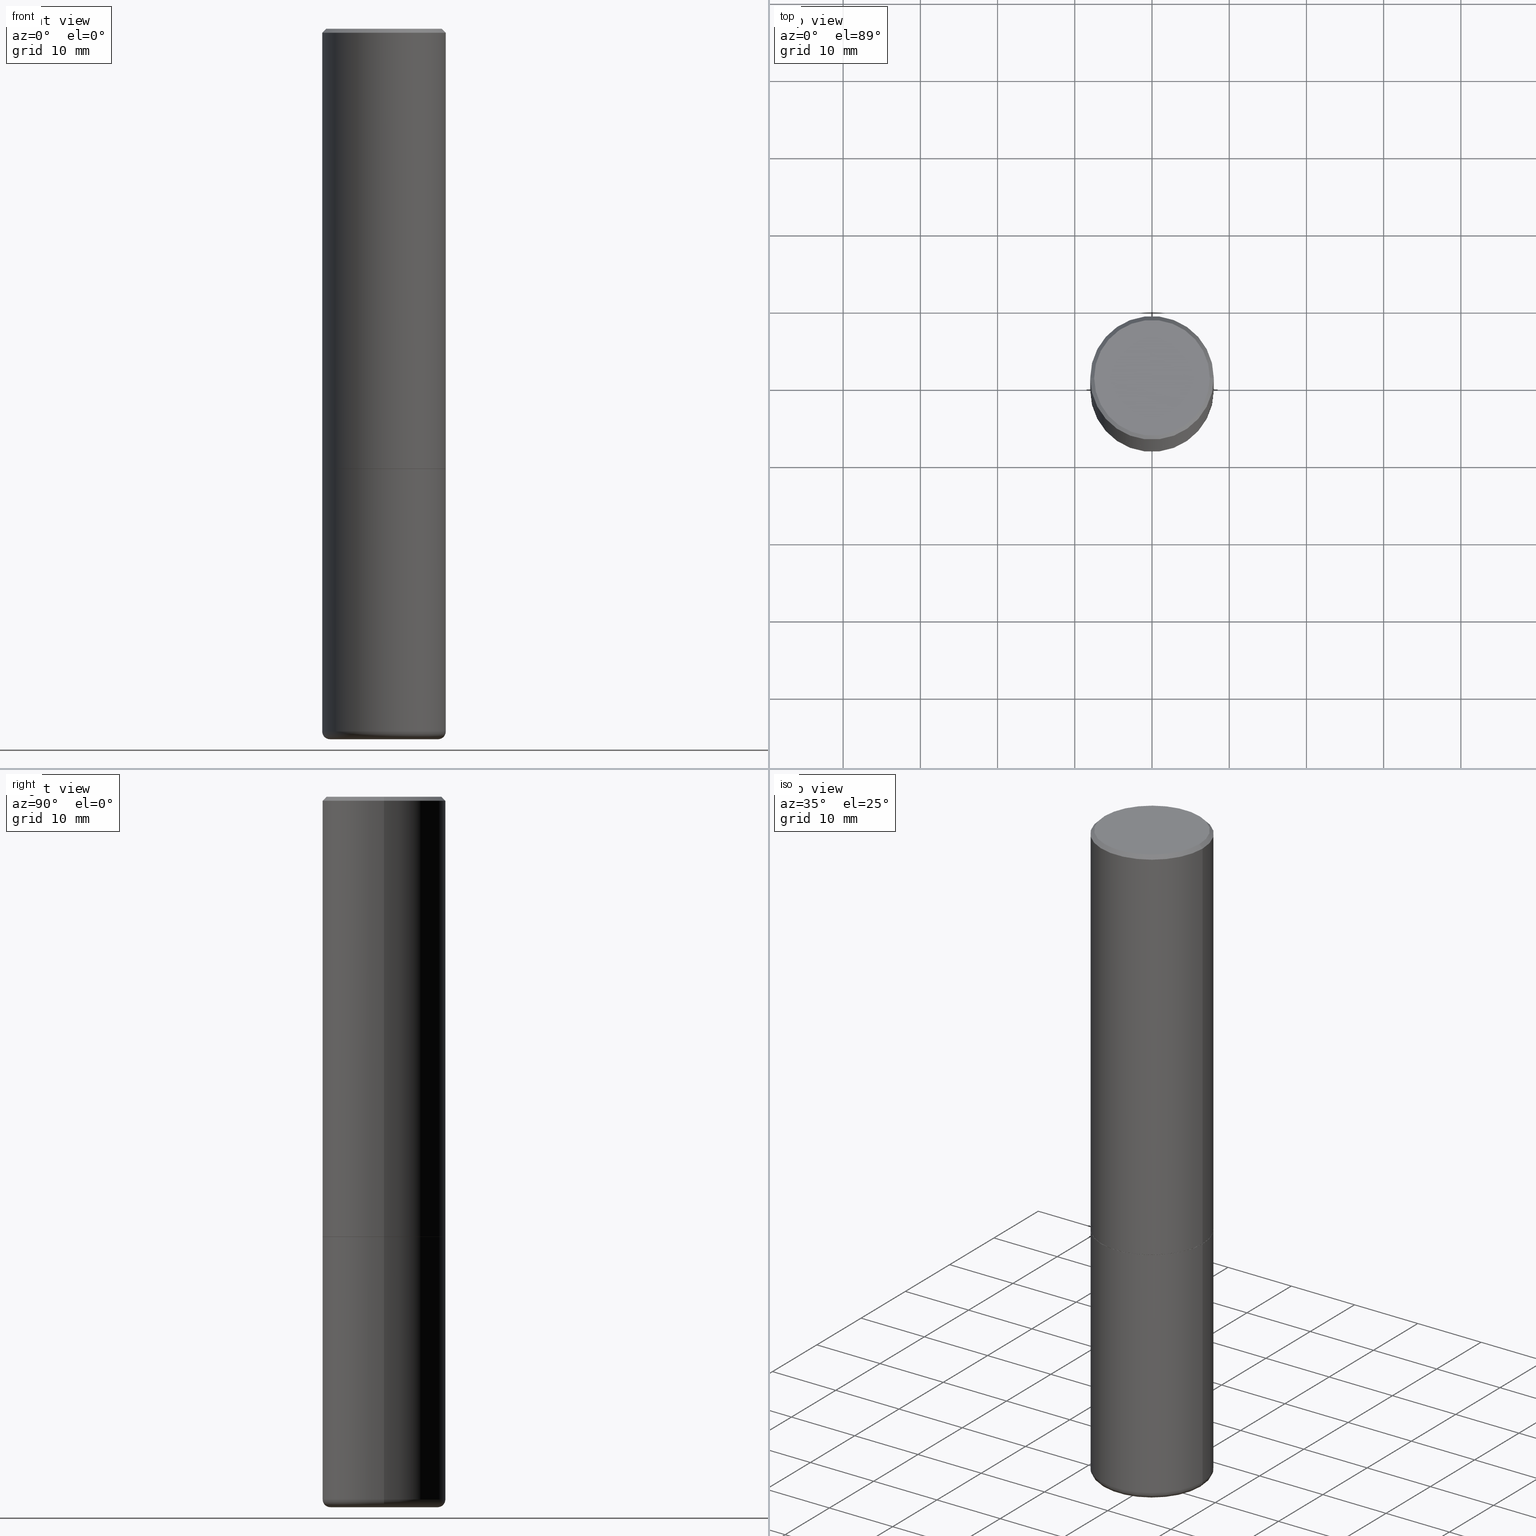
[diagram: canonical four-view strip — front | top / right | iso, engineering-drawing reading convention]
A machine part, canonical four-view strip (front | top / right | iso — engineering-drawing reading convention). The complete STEP part file that produces these views, byte-faithful:
ISO-10303-21;
HEADER;
FILE_DESCRIPTION (( 'STEP AP203' ),
    '1' );
FILE_NAME ('48035.STEP',
    '2024-03-06T19:47:27',
    ( '' ),
    ( '' ),
    'SwSTEP 2.0',
    'SolidWorks 2023',
    '' );
FILE_SCHEMA (( 'CONFIG_CONTROL_DESIGN' ));
ENDSEC;

DATA;
#1 = ORGANIZATION ( 'UNSPECIFIED', 'UNSPECIFIED', '' ) ;
#2 = PERSON_AND_ORGANIZATION_ROLE ( 'classification_officer' ) ;
#3 = APPROVAL_DATE_TIME ( #81, #416 ) ;
#4 = CALENDAR_DATE ( 2024, 6, 3 ) ;
#5 = AXIS2_PLACEMENT_3D ( 'NONE', #119, #242, #365 ) ;
#6 = VERTEX_POINT ( 'NONE', #215 ) ;
#7 = VECTOR ( 'NONE', #301, 39.37007874015748143 ) ;
#8 = DIRECTION ( 'NONE',  ( -1.000000000000000000, 7.105427357601001859E-15, 0.000000000000000000 ) ) ;
#9 = ORIENTED_EDGE ( 'NONE', *, *, #149, .F. ) ;
#10 = DIRECTION ( 'NONE',  ( -2.445468806185136597E-29, 3.491481338843145583E-15, 1.000000000000000000 ) ) ;
#11 = EDGE_CURVE ( 'NONE', #201, #326, #370, .T. ) ;
#12 = ORIENTED_EDGE ( 'NONE', *, *, #203, .F. ) ;
#13 = ORIENTED_EDGE ( 'NONE', *, *, #220, .T. ) ;
#14 = AXIS2_PLACEMENT_3D ( 'NONE', #88, #246, #8 ) ;
#15 = CARTESIAN_POINT ( 'NONE',  ( -0.3139500000000000068, -5.598836751096959871E-15, -2.243999999999999773 ) ) ;
#16 = CARTESIAN_POINT ( 'NONE',  ( 5.487632001079445967E-29, -7.834884124364017250E-15, -2.243999999999999773 ) ) ;
#17 = LINE ( 'NONE', #95, #322 ) ;
#18 = DIRECTION ( 'NONE',  ( 1.000000000000000000, -6.982962677686267499E-15, 4.874125435057325556E-29 ) ) ;
#19 = CYLINDRICAL_SURFACE ( 'NONE', #69, 0.3149500000000000077 ) ;
#20 = CC_DESIGN_DATE_AND_TIME_ASSIGNMENT ( #372, #376, ( #332 ) ) ;
#21 = FACE_OUTER_BOUND ( 'NONE', #219, .T. ) ;
#22 = ORIENTED_EDGE ( 'NONE', *, *, #170, .T. ) ;
#23 = CIRCLE ( 'NONE', #329, 0.3149500000000000077 ) ;
#24 = PLANE ( 'NONE',  #202 ) ;
#25 = VERTEX_POINT ( 'NONE', #258 ) ;
#26 = CARTESIAN_POINT ( 'NONE',  ( 0.3149500000000001743, -1.470786513987674265E-14, -3.582599999999999785 ) ) ;
#27 = DIRECTION ( 'NONE',  ( -2.445468806185136597E-29, 3.491481338843145583E-15, 1.000000000000000000 ) ) ;
#28 = ADVANCED_FACE ( 'NONE', ( #383 ), #19, .T. ) ;
#29 = ORIENTED_EDGE ( 'NONE', *, *, #203, .T. ) ;
#30 = ORIENTED_EDGE ( 'NONE', *, *, #78, .T. ) ;
#31 =( GEOMETRIC_REPRESENTATION_CONTEXT ( 3 ) GLOBAL_UNCERTAINTY_ASSIGNED_CONTEXT ( ( #230 ) ) GLOBAL_UNIT_ASSIGNED_CONTEXT ( ( #91, #305, #253 ) ) REPRESENTATION_CONTEXT ( 'NONE', 'WORKASPACE' ) );
#32 = AXIS2_PLACEMENT_3D ( 'NONE', #129, #165, #194 ) ;
#33 = CARTESIAN_POINT ( 'NONE',  ( -0.3149500000000000077, 2.129454468560426573E-15, -0.02000000000000006981 ) ) ;
#34 = DIRECTION ( 'NONE',  ( -2.445468806185136597E-29, 3.491481338843145583E-15, 1.000000000000000000 ) ) ;
#35 = CIRCLE ( 'NONE', #262, 0.2755500000000000171 ) ;
#36 = PERSON_AND_ORGANIZATION ( #309, #1 ) ;
#37 = EDGE_CURVE ( 'NONE', #381, #358, #245, .T. ) ;
#38 = DATE_TIME_ROLE ( 'classification_date' ) ;
#39 = ORIENTED_EDGE ( 'NONE', *, *, #264, .T. ) ;
#40 = EDGE_CURVE ( 'NONE', #326, #351, #125, .T. ) ;
#41 = MANIFOLD_SOLID_BREP ( 'Body-Move/Copy2[2]', #318 ) ;
#42 = VECTOR ( 'NONE', #216, 39.37007874015748143 ) ;
#43 = DATE_AND_TIME ( #226, #218 ) ;
#44 = ORIENTED_EDGE ( 'NONE', *, *, #11, .F. ) ;
#45 = CC_DESIGN_PERSON_AND_ORGANIZATION_ASSIGNMENT ( #107, #323, ( #114 ) ) ;
#46 = LINE ( 'NONE', #83, #139 ) ;
#47 = EDGE_LOOP ( 'NONE', ( #235, #134, #362, #395 ) ) ;
#48 = VERTEX_POINT ( 'NONE', #64 ) ;
#49 = ADVANCED_FACE ( 'NONE', ( #273 ), #93, .T. ) ;
#50 = FACE_OUTER_BOUND ( 'NONE', #154, .T. ) ;
#51 = PLANE ( 'NONE',  #142 ) ;
#52 = AXIS2_PLACEMENT_3D ( 'NONE', #272, #163, #18 ) ;
#53 = CARTESIAN_POINT ( 'NONE',  ( 8.857488016002564476E-29, -1.264614540928987199E-14, -3.621999999999999886 ) ) ;
#54 = ORIENTED_EDGE ( 'NONE', *, *, #325, .F. ) ;
#55 = EDGE_CURVE ( 'NONE', #269, #25, #23, .T. ) ;
#56 = DIRECTION ( 'NONE',  ( 1.000000000000000000, -6.982962677686264344E-15, 0.000000000000000000 ) ) ;
#57 = VERTEX_POINT ( 'NONE', #185 ) ;
#58 = CARTESIAN_POINT ( 'NONE',  ( 0.2755500000000000171, -1.457030077512632343E-14, -3.621999999999999886 ) ) ;
#59 = CARTESIAN_POINT ( 'NONE',  ( 0.2949499999999997679, -2.127023677808859286E-15, 2.219626494852360421E-16 ) ) ;
#60 = ORIENTED_EDGE ( 'NONE', *, *, #408, .T. ) ;
#61 = AXIS2_PLACEMENT_3D ( 'NONE', #360, #233, #80 ) ;
#62 = CALENDAR_DATE ( 2024, 6, 3 ) ;
#63 = CARTESIAN_POINT ( 'NONE',  ( 5.487632001079445967E-29, -7.834884124364017250E-15, -2.243999999999999773 ) ) ;
#64 = CARTESIAN_POINT ( 'NONE',  ( -0.2949499999999997679, 2.094539655171995318E-15, 2.219626494852068542E-16 ) ) ;
#65 = PERSON_AND_ORGANIZATION ( #309, #1 ) ;
#66 = ORIENTED_EDGE ( 'NONE', *, *, #128, .T. ) ;
#67 = AXIS2_PLACEMENT_3D ( 'NONE', #96, #375, #341 ) ;
#68 = AXIS2_PLACEMENT_3D ( 'NONE', #183, #308, #160 ) ;
#69 = AXIS2_PLACEMENT_3D ( 'NONE', #304, #249, #121 ) ;
#70 = PERSON_AND_ORGANIZATION ( #309, #1 ) ;
#71 = ADVANCED_FACE ( 'NONE', ( #310 ), #415, .F. ) ;
#72 = CIRCLE ( 'NONE', #5, 0.3149500000000000632 ) ;
#73 = EDGE_CURVE ( 'NONE', #6, #351, #259, .T. ) ;
#74 = COORDINATED_UNIVERSAL_TIME_OFFSET ( 5, 0, .BEHIND. ) ;
#75 = VERTEX_POINT ( 'NONE', #367 ) ;
#76 = APPROVAL_DATE_TIME ( #198, #298 ) ;
#77 = EDGE_LOOP ( 'NONE', ( #144, #211 ) ) ;
#78 = EDGE_CURVE ( 'NONE', #358, #410, #363, .T. ) ;
#79 = DIRECTION ( 'NONE',  ( 2.445468806185136597E-29, -3.491481338843145583E-15, -1.000000000000000000 ) ) ;
#80 = DIRECTION ( 'NONE',  ( 1.000000000000000000, -6.982962677686264344E-15, 0.000000000000000000 ) ) ;
#81 = DATE_AND_TIME ( #200, #238 ) ;
#82 = ORIENTED_EDGE ( 'NONE', *, *, #264, .F. ) ;
#83 = CARTESIAN_POINT ( 'NONE',  ( -0.3149500000000000077, 2.237854346276435590E-15, -1.549218606675782676E-29 ) ) ;
#84 = CARTESIAN_POINT ( 'NONE',  ( 0.3139500000000000068, -1.002718525702362111E-14, -2.243999999999999773 ) ) ;
#85 = DIRECTION ( 'NONE',  ( -2.445468806185136597E-29, 3.491481338843145583E-15, 1.000000000000000000 ) ) ;
#86 = ORIENTED_EDGE ( 'NONE', *, *, #97, .T. ) ;
#87 = DIRECTION ( 'NONE',  ( 1.000000000000000000, -6.982962677686264344E-15, 0.000000000000000000 ) ) ;
#88 = CARTESIAN_POINT ( 'NONE',  ( -0.2755500000000000171, -1.055068053615249541E-14, -3.582599999999999785 ) ) ;
#89 = DIRECTION ( 'NONE',  ( -2.445468806185136597E-29, 3.491481338843145583E-15, 1.000000000000000000 ) ) ;
#90 = ORIENTED_EDGE ( 'NONE', *, *, #366, .T. ) ;
#91 =( CONVERSION_BASED_UNIT ( 'INCH', #182 ) LENGTH_UNIT ( ) NAMED_UNIT ( #260 ) );
#92 = LINE ( 'NONE', #247, #317 ) ;
#93 = CYLINDRICAL_SURFACE ( 'NONE', #67, 0.3149500000000001743 ) ;
#94 = DIRECTION ( 'NONE',  ( 1.000000000000000000, -6.982962677686264344E-15, 0.000000000000000000 ) ) ;
#95 = CARTESIAN_POINT ( 'NONE',  ( 0.3149500000000001743, -2.199284095337290660E-15, 1.535751875536930690E-29 ) ) ;
#96 = CARTESIAN_POINT ( 'NONE',  ( 0.000000000000000000, 0.000000000000000000, 0.000000000000000000 ) ) ;
#97 = EDGE_CURVE ( 'NONE', #313, #57, #406, .T. ) ;
#98 = DIRECTION ( 'NONE',  ( 1.000000000000000000, -6.982962677686267499E-15, 0.000000000000000000 ) ) ;
#99 = EDGE_LOOP ( 'NONE', ( #54, #229 ) ) ;
#100 = APPROVAL_PERSON_ORGANIZATION ( #36, #416, #109 ) ;
#101 =( LENGTH_UNIT ( ) NAMED_UNIT ( * ) SI_UNIT ( $, .METRE. ) );
#102 = CARTESIAN_POINT ( 'NONE',  ( 0.3149500000000000077, -2.230543471175007450E-15, -0.02000000000000006981 ) ) ;
#103 = CARTESIAN_POINT ( 'NONE',  ( 2.059624841783562486E-15, 0.2949499999999997679, -9.188310961491742905E-16 ) ) ;
#104 = CC_DESIGN_PERSON_AND_ORGANIZATION_ASSIGNMENT ( #106, #353, ( #332 ) ) ;
#105 = CONICAL_SURFACE ( 'NONE', #146, 0.3139500000000000068, 0.7853981633975507526 ) ;
#106 = PERSON_AND_ORGANIZATION ( #309, #1 ) ;
#107 = PERSON_AND_ORGANIZATION ( #309, #1 ) ;
#108 = EDGE_CURVE ( 'NONE', #201, #48, #177, .T. ) ;
#109 = APPROVAL_ROLE ( '' ) ;
#110 = AXIS2_PLACEMENT_3D ( 'NONE', #173, #368, #150 ) ;
#111 = AXIS2_PLACEMENT_3D ( 'NONE', #348, #89, #270 ) ;
#112 = ORIENTED_EDGE ( 'NONE', *, *, #220, .F. ) ;
#113 = ORIENTED_EDGE ( 'NONE', *, *, #55, .T. ) ;
#114 = PRODUCT_DEFINITION_FORMATION_WITH_SPECIFIED_SOURCE ( 'ANY', '', #354, .NOT_KNOWN. ) ;
#115 = ORIENTED_EDGE ( 'NONE', *, *, #37, .T. ) ;
#116 = DIRECTION ( 'NONE',  ( 1.000000000000000000, -6.982962677686266711E-15, 4.883557194083112901E-29 ) ) ;
#117 = APPROVAL ( #417, 'UNSPECIFIED' ) ;
#118 = PRODUCT_RELATED_PRODUCT_CATEGORY ( 'detail', '', ( #354 ) ) ;
#119 = CARTESIAN_POINT ( 'NONE',  ( 8.761136545038868759E-29, -1.250858104453945120E-14, -3.582599999999999785 ) ) ;
#120 = DIRECTION ( 'NONE',  ( -2.445468806185136597E-29, 3.491481338843145583E-15, 1.000000000000000000 ) ) ;
#121 = DIRECTION ( 'NONE',  ( 1.000000000000000000, -6.982962677686266711E-15, 4.876176775795936353E-29 ) ) ;
#122 = APPROVAL_DATE_TIME ( #274, #117 ) ;
#123 = DIRECTION ( 'NONE',  ( 1.000000000000000000, -6.982962677686266711E-15, 4.883557194083112901E-29 ) ) ;
#124 = ORIENTED_EDGE ( 'NONE', *, *, #37, .F. ) ;
#125 = CIRCLE ( 'NONE', #374, 0.3149500000000000077 ) ;
#126 = DIRECTION ( 'NONE',  ( -2.445468806185136597E-29, 3.491481338843145583E-15, 1.000000000000000000 ) ) ;
#127 = DIRECTION ( 'NONE',  ( 1.000000000000000000, -6.982962677686266711E-15, 4.876176775795936353E-29 ) ) ;
#128 = EDGE_CURVE ( 'NONE', #6, #57, #414, .T. ) ;
#129 = CARTESIAN_POINT ( 'NONE',  ( 0.2755500000000000171, -1.443273641037590422E-14, -3.582599999999999785 ) ) ;
#130 = CARTESIAN_POINT ( 'NONE',  ( 0.000000000000000000, 0.000000000000000000, 0.000000000000000000 ) ) ;
#131 = FACE_OUTER_BOUND ( 'NONE', #338, .T. ) ;
#132 = EDGE_LOOP ( 'NONE', ( #407, #39, #296, #241 ) ) ;
#133 = DIRECTION ( 'NONE',  ( -1.000000000000000000, 6.982962677686266711E-15, 0.000000000000000000 ) ) ;
#134 = ORIENTED_EDGE ( 'NONE', *, *, #342, .T. ) ;
#135 = CIRCLE ( 'NONE', #227, 0.3139500000000000068 ) ;
#136 = DIRECTION ( 'NONE',  ( -1.000000000000000000, 6.982962677686265922E-15, -4.876176775795935793E-29 ) ) ;
#137 = EDGE_CURVE ( 'NONE', #75, #381, #167, .T. ) ;
#138 = DIRECTION ( 'NONE',  ( 2.445468806185136597E-29, -3.491481338843145583E-15, -1.000000000000000000 ) ) ;
#139 = VECTOR ( 'NONE', #145, 39.37007874015748143 ) ;
#140 = ADVANCED_FACE ( 'NONE', ( #251 ), #267, .T. ) ;
#141 = APPROVAL_STATUS ( 'not_yet_approved' ) ;
#142 = AXIS2_PLACEMENT_3D ( 'NONE', #63, #295, #210 ) ;
#143 = ORIENTED_EDGE ( 'NONE', *, *, #384, .F. ) ;
#144 = ORIENTED_EDGE ( 'NONE', *, *, #384, .T. ) ;
#145 = DIRECTION ( 'NONE',  ( -2.445468806185136877E-29, 3.491481338843145188E-15, 1.000000000000000000 ) ) ;
#146 = AXIS2_PLACEMENT_3D ( 'NONE', #377, #369, #56 ) ;
#147 = ORIENTED_EDGE ( 'NONE', *, *, #73, .F. ) ;
#148 = ADVANCED_FACE ( 'NONE', ( #174 ), #248, .T. ) ;
#149 = EDGE_CURVE ( 'NONE', #358, #25, #92, .T. ) ;
#150 = DIRECTION ( 'NONE',  ( 1.000000000000000000, -6.982962677686265922E-15, 4.876176775795935232E-29 ) ) ;
#151 = FACE_OUTER_BOUND ( 'NONE', #209, .T. ) ;
#152 = ORIENTED_EDGE ( 'NONE', *, *, #73, .T. ) ;
#153 = CARTESIAN_POINT ( 'NONE',  ( 5.487632001079445967E-29, -7.834884124364017250E-15, -2.243999999999999773 ) ) ;
#154 = EDGE_LOOP ( 'NONE', ( #147, #66, #164, #12 ) ) ;
#155 = DIRECTION ( 'NONE',  ( -2.445468806185136597E-29, 3.491481338843145583E-15, 1.000000000000000000 ) ) ;
#156 = ORIENTED_EDGE ( 'NONE', *, *, #40, .T. ) ;
#157 = CIRCLE ( 'NONE', #334, 0.2949499999999997679 ) ;
#158 = VECTOR ( 'NONE', #373, 39.37007874015748143 ) ;
#159 = CARTESIAN_POINT ( 'NONE',  ( 5.487632001079445967E-29, -7.834884124364017250E-15, -2.243999999999999773 ) ) ;
#160 = DIRECTION ( 'NONE',  ( 1.000000000000000000, -6.982962677686266711E-15, 0.000000000000000000 ) ) ;
#161 = ORIENTED_EDGE ( 'NONE', *, *, #11, .T. ) ;
#162 = CARTESIAN_POINT ( 'NONE',  ( -5.428027354543142984E-45, 7.749784485978325769E-31, 2.219626494852213988E-16 ) ) ;
#163 = DIRECTION ( 'NONE',  ( -2.445468806185136597E-29, 3.491481338843145583E-15, 1.000000000000000000 ) ) ;
#164 = ORIENTED_EDGE ( 'NONE', *, *, #191, .T. ) ;
#165 = DIRECTION ( 'NONE',  ( -6.982962677686266711E-15, -1.000000000000000000, 3.491481338843145583E-15 ) ) ;
#166 = CONICAL_SURFACE ( 'NONE', #347, 0.3149500000000000077, 0.7853981633974468357 ) ;
#167 = CIRCLE ( 'NONE', #390, 0.2755500000000000171 ) ;
#168 = CC_DESIGN_APPROVAL ( #298, ( #114 ) ) ;
#169 = CC_DESIGN_APPROVAL ( #416, ( #393 ) ) ;
#170 = EDGE_CURVE ( 'NONE', #25, #269, #371, .T. ) ;
#171 = CIRCLE ( 'NONE', #284, 0.3139500000000000068 ) ;
#172 = ADVANCED_FACE ( 'NONE', ( #21 ), #51, .F. ) ;
#173 = CARTESIAN_POINT ( 'NONE',  ( 0.000000000000000000, 0.000000000000000000, 0.000000000000000000 ) ) ;
#174 = FACE_OUTER_BOUND ( 'NONE', #330, .T. ) ;
#175 = CIRCLE ( 'NONE', #288, 0.3149500000000002853 ) ;
#176 = EDGE_LOOP ( 'NONE', ( #277, #152, #279, #349 ) ) ;
#177 = CIRCLE ( 'NONE', #52, 0.2949499999999997679 ) ;
#178 = CARTESIAN_POINT ( 'NONE',  ( 8.761136545038868759E-29, -1.250858104453945120E-14, -3.582599999999999785 ) ) ;
#179 = ORIENTED_EDGE ( 'NONE', *, *, #306, .T. ) ;
#180 = CYLINDRICAL_SURFACE ( 'NONE', #276, 0.3149500000000000077 ) ;
#181 = ORIENTED_EDGE ( 'NONE', *, *, #137, .F. ) ;
#182 = LENGTH_MEASURE_WITH_UNIT ( LENGTH_MEASURE( 0.02539999999999999897 ), #101 );
#183 = CARTESIAN_POINT ( 'NONE',  ( 4.890937612370289799E-31, -6.982962677686315028E-17, -0.02000000000000006981 ) ) ;
#184 = LOCAL_TIME ( 14, 47, 27.00000000000000000, #74 ) ;
#185 = CARTESIAN_POINT ( 'NONE',  ( 0.3149500000000002853, -1.003067673836246727E-14, -2.242999999999999883 ) ) ;
#186 = APPROVAL_PERSON_ORGANIZATION ( #70, #298, #343 ) ;
#187 = CALENDAR_DATE ( 2024, 6, 3 ) ;
#188 = CARTESIAN_POINT ( 'NONE',  ( 8.857488016002564476E-29, -1.264614540928987199E-14, -3.621999999999999886 ) ) ;
#189 = MANIFOLD_SOLID_BREP ( 'Body-Move/Copy2[1]', #352 ) ;
#190 = DIRECTION ( 'NONE',  ( 1.000000000000000000, -6.982962677686266711E-15, 0.000000000000000000 ) ) ;
#191 = EDGE_CURVE ( 'NONE', #57, #326, #17, .T. ) ;
#192 = APPLICATION_PROTOCOL_DEFINITION ( 'international standard', 'config_control_design', 1994, #297 ) ;
#193 = ADVANCED_FACE ( 'NONE', ( #214 ), #105, .T. ) ;
#194 = DIRECTION ( 'NONE',  ( 1.000000000000000000, -6.982962677686255667E-15, 0.000000000000000000 ) ) ;
#195 = ADVANCED_FACE ( 'NONE', ( #151 ), #24, .T. ) ;
#196 = COORDINATED_UNIVERSAL_TIME_OFFSET ( 5, 0, .BEHIND. ) ;
#197 = AXIS2_PLACEMENT_3D ( 'NONE', #16, #239, #205 ) ;
#198 = DATE_AND_TIME ( #4, #184 ) ;
#199 = ADVANCED_FACE ( 'NONE', ( #131 ), #180, .T. ) ;
#200 = CALENDAR_DATE ( 2024, 6, 3 ) ;
#201 = VERTEX_POINT ( 'NONE', #59 ) ;
#202 = AXIS2_PLACEMENT_3D ( 'NONE', #312, #207, #344 ) ;
#203 = EDGE_CURVE ( 'NONE', #351, #326, #382, .T. ) ;
#204 = CARTESIAN_POINT ( 'NONE',  ( -0.3139500000000000068, -5.604135205445183851E-15, -2.243999999999999773 ) ) ;
#205 = DIRECTION ( 'NONE',  ( 1.000000000000000000, -6.982962677686265922E-15, 4.876176775795935793E-29 ) ) ;
#206 = CARTESIAN_POINT ( 'NONE',  ( 0.3149500000000000077, -2.230543471175007450E-15, -0.02000000000000006981 ) ) ;
#207 = DIRECTION ( 'NONE',  ( 2.438088387897960049E-29, -3.491481338843145188E-15, -1.000000000000000000 ) ) ;
#208 = VECTOR ( 'NONE', #320, 39.37007874015748143 ) ;
#209 = EDGE_LOOP ( 'NONE', ( #112, #181 ) ) ;
#210 = DIRECTION ( 'NONE',  ( -1.000000000000000000, 6.982962677686265922E-15, -4.876176775795935793E-29 ) ) ;
#211 = ORIENTED_EDGE ( 'NONE', *, *, #108, .T. ) ;
#212 = EDGE_CURVE ( 'NONE', #57, #6, #175, .T. ) ;
#213 = APPROVAL_STATUS ( 'not_yet_approved' ) ;
#214 = FACE_OUTER_BOUND ( 'NONE', #47, .T. ) ;
#215 = CARTESIAN_POINT ( 'NONE',  ( -0.3149500000000002853, -1.712756788624580222E-15, -2.242999999999999883 ) ) ;
#216 = DIRECTION ( 'NONE',  ( -0.7071067811865464625, 2.468850131082245622E-15, -0.7071067811865485719 ) ) ;
#217 = DIRECTION ( 'NONE',  ( 1.000000000000000000, -6.982962677686268288E-15, 0.000000000000000000 ) ) ;
#218 = LOCAL_TIME ( 14, 47, 27.00000000000000000, #357 ) ;
#219 = EDGE_LOOP ( 'NONE', ( #22, #113 ) ) ;
#220 = EDGE_CURVE ( 'NONE', #381, #75, #35, .T. ) ;
#221 = DIRECTION ( 'NONE',  ( 1.000000000000000000, -6.982962677686266711E-15, 0.000000000000000000 ) ) ;
#222 = DIRECTION ( 'NONE',  ( 2.438088387897960049E-29, -3.491481338843145188E-15, -1.000000000000000000 ) ) ;
#223 = LOCAL_TIME ( 14, 47, 27.00000000000000000, #196 ) ;
#224 = CC_DESIGN_SECURITY_CLASSIFICATION ( #393, ( #114 ) ) ;
#225 = LINE ( 'NONE', #33, #42 ) ;
#226 = CALENDAR_DATE ( 2024, 6, 3 ) ;
#227 = AXIS2_PLACEMENT_3D ( 'NONE', #396, #10, #87 ) ;
#228 = CC_DESIGN_PERSON_AND_ORGANIZATION_ASSIGNMENT ( #389, #391, ( #114 ) ) ;
#229 = ORIENTED_EDGE ( 'NONE', *, *, #408, .F. ) ;
#230 = UNCERTAINTY_MEASURE_WITH_UNIT (LENGTH_MEASURE( 1.000000000000000082E-05 ), #91, 'distance_accuracy_value', 'NONE');
#231 = COORDINATED_UNIVERSAL_TIME_OFFSET ( 5, 0, .BEHIND. ) ;
#232 = CARTESIAN_POINT ( 'NONE',  ( 4.890937612370289799E-31, -6.982962677686315028E-17, -0.02000000000000006981 ) ) ;
#233 = DIRECTION ( 'NONE',  ( -2.445468806185136597E-29, 3.491481338843145583E-15, 1.000000000000000000 ) ) ;
#234 = PERSON_AND_ORGANIZATION ( #309, #1 ) ;
#235 = ORIENTED_EDGE ( 'NONE', *, *, #325, .T. ) ;
#236 = DESIGN_CONTEXT ( 'detailed design', #297, 'design' ) ;
#237 = AXIS2_PLACEMENT_3D ( 'NONE', #232, #79, #331 ) ;
#238 = LOCAL_TIME ( 14, 47, 27.00000000000000000, #231 ) ;
#239 = DIRECTION ( 'NONE',  ( -2.438088387897960049E-29, 3.491481338843145188E-15, 1.000000000000000000 ) ) ;
#240 = CARTESIAN_POINT ( 'NONE',  ( 8.761136545038868759E-29, -1.250858104453945120E-14, -3.582599999999999785 ) ) ;
#241 = ORIENTED_EDGE ( 'NONE', *, *, #55, .F. ) ;
#242 = DIRECTION ( 'NONE',  ( -2.445468806185136597E-29, 3.491481338843145583E-15, 1.000000000000000000 ) ) ;
#243 = DIRECTION ( 'NONE',  ( 1.000000000000000000, -6.982962677686266711E-15, 0.000000000000000000 ) ) ;
#244 = CARTESIAN_POINT ( 'NONE',  ( 5.487632001079445967E-29, -7.834884124364017250E-15, -2.243999999999999773 ) ) ;
#245 = CIRCLE ( 'NONE', #32, 0.03940000000000012936 ) ;
#246 = DIRECTION ( 'NONE',  ( 7.105427357601001859E-15, 1.000000000000000000, -3.491481338843145583E-15 ) ) ;
#247 = CARTESIAN_POINT ( 'NONE',  ( 0.3149500000000000077, -2.199284095337289871E-15, 1.535751875536930130E-29 ) ) ;
#248 = TOROIDAL_SURFACE ( 'NONE', #418, 0.2755500000000000171, 0.03940000000000009467 ) ;
#249 = DIRECTION ( 'NONE',  ( -2.445468806185136597E-29, 3.491481338843145583E-15, 1.000000000000000000 ) ) ;
#250 = COORDINATED_UNIVERSAL_TIME_OFFSET ( 5, 0, .BEHIND. ) ;
#251 = FACE_OUTER_BOUND ( 'NONE', #290, .T. ) ;
#252 = CARTESIAN_POINT ( 'NONE',  ( 4.890937612370289799E-31, -6.982962677686315028E-17, -0.02000000000000006981 ) ) ;
#253 =( NAMED_UNIT ( * ) SI_UNIT ( $, .STERADIAN. ) SOLID_ANGLE_UNIT ( ) );
#254 = CARTESIAN_POINT ( 'NONE',  ( 5.485186532273261485E-29, -7.831392643025175821E-15, -2.242999999999999883 ) ) ;
#255 = ORIENTED_EDGE ( 'NONE', *, *, #265, .F. ) ;
#256 = CARTESIAN_POINT ( 'NONE',  ( 4.890937612370289799E-31, -6.982962677686315028E-17, -0.02000000000000006981 ) ) ;
#257 = CONICAL_SURFACE ( 'NONE', #237, 0.3149500000000000077, 0.7853981633974468357 ) ;
#258 = CARTESIAN_POINT ( 'NONE',  ( 0.3149500000000000077, -1.003416821970130712E-14, -2.243999999999999773 ) ) ;
#259 = LINE ( 'NONE', #385, #158 ) ;
#260 = DIMENSIONAL_EXPONENTS ( 1.000000000000000000, 0.000000000000000000, 0.000000000000000000, 0.000000000000000000, 0.000000000000000000, 0.000000000000000000, 0.000000000000000000 ) ;
#261 = AXIS2_PLACEMENT_3D ( 'NONE', #278, #120, #217 ) ;
#262 = AXIS2_PLACEMENT_3D ( 'NONE', #188, #27, #316 ) ;
#263 = ADVANCED_FACE ( 'NONE', ( #355 ), #335, .F. ) ;
#264 = EDGE_CURVE ( 'NONE', #410, #358, #72, .T. ) ;
#265 = EDGE_CURVE ( 'NONE', #75, #410, #356, .T. ) ;
#266 = APPROVAL_PERSON_ORGANIZATION ( #346, #117, #399 ) ;
#267 = TOROIDAL_SURFACE ( 'NONE', #413, 0.2755500000000000171, 0.03940000000000009467 ) ;
#268 = SHAPE_DEFINITION_REPRESENTATION ( #285, #292 ) ;
#269 = VERTEX_POINT ( 'NONE', #293 ) ;
#270 = DIRECTION ( 'NONE',  ( 1.000000000000000000, -6.982962677686267499E-15, 0.000000000000000000 ) ) ;
#271 = EDGE_LOOP ( 'NONE', ( #44, #143, #90, #29 ) ) ;
#272 = CARTESIAN_POINT ( 'NONE',  ( -5.428027354543142984E-45, 7.749784485978325769E-31, 2.219626494852213988E-16 ) ) ;
#273 = FACE_OUTER_BOUND ( 'NONE', #176, .T. ) ;
#274 = DATE_AND_TIME ( #62, #223 ) ;
#275 = CARTESIAN_POINT ( 'NONE',  ( 0.000000000000000000, 0.000000000000000000, 0.000000000000000000 ) ) ;
#276 = AXIS2_PLACEMENT_3D ( 'NONE', #275, #303, #127 ) ;
#277 = ORIENTED_EDGE ( 'NONE', *, *, #212, .T. ) ;
#278 = CARTESIAN_POINT ( 'NONE',  ( 8.761136545038868759E-29, -1.250858104453945120E-14, -3.582599999999999785 ) ) ;
#279 = ORIENTED_EDGE ( 'NONE', *, *, #40, .F. ) ;
#280 = DIRECTION ( 'NONE',  ( 1.000000000000000000, -6.982962677686267499E-15, 4.874125435057325556E-29 ) ) ;
#281 = ORIENTED_EDGE ( 'NONE', *, *, #108, .F. ) ;
#282 = AXIS2_PLACEMENT_3D ( 'NONE', #153, #340, #243 ) ;
#283 = EDGE_LOOP ( 'NONE', ( #281, #161, #156, #398 ) ) ;
#284 = AXIS2_PLACEMENT_3D ( 'NONE', #159, #34, #94 ) ;
#285 = PRODUCT_DEFINITION_SHAPE ( 'NONE', 'NONE',  #332 ) ;
#286 = ADVANCED_FACE ( 'NONE', ( #299 ), #294, .T. ) ;
#287 = ORIENTED_EDGE ( 'NONE', *, *, #170, .F. ) ;
#288 = AXIS2_PLACEMENT_3D ( 'NONE', #254, #380, #98 ) ;
#289 = FACE_OUTER_BOUND ( 'NONE', #271, .T. ) ;
#290 = EDGE_LOOP ( 'NONE', ( #255, #405, #115, #82 ) ) ;
#291 = ORIENTED_EDGE ( 'NONE', *, *, #78, .F. ) ;
#292 = ADVANCED_BREP_SHAPE_REPRESENTATION ( '48035', ( #189, #41, #402 ), #31 ) ;
#293 = CARTESIAN_POINT ( 'NONE',  ( -0.3149500000000000077, -7.933878238175299817E-15, -2.243999999999999773 ) ) ;
#294 = CONICAL_SURFACE ( 'NONE', #61, 0.3139500000000000068, 0.7853981633975507526 ) ;
#295 = DIRECTION ( 'NONE',  ( 2.438088387897960049E-29, -3.491481338843145188E-15, -1.000000000000000000 ) ) ;
#296 = ORIENTED_EDGE ( 'NONE', *, *, #149, .T. ) ;
#297 = APPLICATION_CONTEXT ( 'configuration controlled 3d designs of mechanical parts and assemblies' ) ;
#298 = APPROVAL ( #213, 'UNSPECIFIED' ) ;
#299 = FACE_OUTER_BOUND ( 'NONE', #401, .T. ) ;
#300 = CARTESIAN_POINT ( 'NONE',  ( 0.3139500000000000068, -1.002718525702362111E-14, -2.243999999999999773 ) ) ;
#301 = DIRECTION ( 'NONE',  ( 0.7071067811865464625, -7.319954787623252890E-15, -0.7071067811865485719 ) ) ;
#302 = CARTESIAN_POINT ( 'NONE',  ( -0.3149500000000001743, -1.027072669826301521E-14, -3.582599999999999785 ) ) ;
#303 = DIRECTION ( 'NONE',  ( -2.445468806185136597E-29, 3.491481338843145583E-15, 1.000000000000000000 ) ) ;
#304 = CARTESIAN_POINT ( 'NONE',  ( 0.000000000000000000, 0.000000000000000000, 0.000000000000000000 ) ) ;
#305 =( NAMED_UNIT ( * ) PLANE_ANGLE_UNIT ( ) SI_UNIT ( $, .RADIAN. ) );
#306 = EDGE_CURVE ( 'NONE', #410, #269, #46, .T. ) ;
#307 = APPLICATION_CONTEXT ( 'configuration controlled 3d designs of mechanical parts and assemblies' ) ;
#308 = DIRECTION ( 'NONE',  ( -2.445468806185136597E-29, 3.491481338843145583E-15, 1.000000000000000000 ) ) ;
#309 = PERSON ( 'UNSPECIFIED', 'UNSPECIFIED', 'UNSPECIFIED', ('UNSPECIFIED'), ('UNSPECIFIED'), ('UNSPECIFIED') ) ;
#310 = FACE_OUTER_BOUND ( 'NONE', #77, .T. ) ;
#311 = CARTESIAN_POINT ( 'NONE',  ( -0.3149500000000000077, 2.129454468560426573E-15, -0.02000000000000006981 ) ) ;
#312 = CARTESIAN_POINT ( 'NONE',  ( 8.857488016002564476E-29, -1.264614540928987199E-14, -3.621999999999999886 ) ) ;
#313 = VERTEX_POINT ( 'NONE', #84 ) ;
#314 = MECHANICAL_CONTEXT ( 'NONE', #307, 'mechanical' ) ;
#315 = VERTEX_POINT ( 'NONE', #15 ) ;
#316 = DIRECTION ( 'NONE',  ( 1.000000000000000000, -6.982962677686268288E-15, 0.000000000000000000 ) ) ;
#317 = VECTOR ( 'NONE', #400, 39.37007874015748143 ) ;
#318 = CLOSED_SHELL ( 'NONE', ( #193, #49, #412, #319, #321, #286, #263, #71 ) ) ;
#319 = ADVANCED_FACE ( 'NONE', ( #289 ), #257, .T. ) ;
#320 = DIRECTION ( 'NONE',  ( -0.7071067811866199593, 7.493145998870616062E-15, 0.7071067811864750752 ) ) ;
#321 = ADVANCED_FACE ( 'NONE', ( #50 ), #328, .T. ) ;
#322 = VECTOR ( 'NONE', #404, 39.37007874015748143 ) ;
#323 = PERSON_AND_ORGANIZATION_ROLE ( 'design_supplier' ) ;
#324 = ORIENTED_EDGE ( 'NONE', *, *, #128, .F. ) ;
#325 = EDGE_CURVE ( 'NONE', #313, #315, #135, .T. ) ;
#326 = VERTEX_POINT ( 'NONE', #206 ) ;
#327 = CC_DESIGN_APPROVAL ( #117, ( #332 ) ) ;
#328 = CYLINDRICAL_SURFACE ( 'NONE', #110, 0.3149500000000001743 ) ;
#329 = AXIS2_PLACEMENT_3D ( 'NONE', #244, #345, #190 ) ;
#330 = EDGE_LOOP ( 'NONE', ( #13, #392, #291, #124 ) ) ;
#331 = DIRECTION ( 'NONE',  ( -1.000000000000000000, 6.982962677686266711E-15, 0.000000000000000000 ) ) ;
#332 = PRODUCT_DEFINITION ( 'UNKNOWN', '', #114, #236 ) ;
#333 = CC_DESIGN_PERSON_AND_ORGANIZATION_ASSIGNMENT ( #234, #2, ( #393 ) ) ;
#334 = AXIS2_PLACEMENT_3D ( 'NONE', #162, #126, #280 ) ;
#335 = PLANE ( 'NONE',  #197 ) ;
#336 = DIRECTION ( 'NONE',  ( 0.7071067811866199593, -2.468850131083015945E-15, 0.7071067811864750752 ) ) ;
#337 = AXIS2_PLACEMENT_3D ( 'NONE', #103, #222, #136 ) ;
#338 = EDGE_LOOP ( 'NONE', ( #30, #179, #287, #9 ) ) ;
#339 = DIRECTION ( 'NONE',  ( 0.000000000000000000, 0.000000000000000000, 1.000000000000000000 ) ) ;
#340 = DIRECTION ( 'NONE',  ( -2.445468806185136597E-29, 3.491481338843145583E-15, 1.000000000000000000 ) ) ;
#341 = DIRECTION ( 'NONE',  ( 1.000000000000000000, -6.982962677686265922E-15, 4.876176775795935232E-29 ) ) ;
#342 = EDGE_CURVE ( 'NONE', #315, #6, #364, .T. ) ;
#343 = APPROVAL_ROLE ( '' ) ;
#344 = DIRECTION ( 'NONE',  ( -1.000000000000000000, 6.982962677686265922E-15, -4.876176775795935793E-29 ) ) ;
#345 = DIRECTION ( 'NONE',  ( -2.445468806185136597E-29, 3.491481338843145583E-15, 1.000000000000000000 ) ) ;
#346 = PERSON_AND_ORGANIZATION ( #309, #1 ) ;
#347 = AXIS2_PLACEMENT_3D ( 'NONE', #256, #138, #133 ) ;
#348 = CARTESIAN_POINT ( 'NONE',  ( 5.485186532273261485E-29, -7.831392643025175821E-15, -2.242999999999999883 ) ) ;
#349 = ORIENTED_EDGE ( 'NONE', *, *, #191, .F. ) ;
#350 = APPLICATION_PROTOCOL_DEFINITION ( 'international standard', 'config_control_design', 1994, #307 ) ;
#351 = VERTEX_POINT ( 'NONE', #311 ) ;
#352 = CLOSED_SHELL ( 'NONE', ( #199, #148, #172, #28, #140, #195 ) ) ;
#353 = PERSON_AND_ORGANIZATION_ROLE ( 'creator' ) ;
#354 = PRODUCT ( '48035', '48035', '', ( #314 ) ) ;
#355 = FACE_OUTER_BOUND ( 'NONE', #99, .T. ) ;
#356 = CIRCLE ( 'NONE', #14, 0.03940000000000012936 ) ;
#357 = COORDINATED_UNIVERSAL_TIME_OFFSET ( 5, 0, .BEHIND. ) ;
#358 = VERTEX_POINT ( 'NONE', #26 ) ;
#359 = ORIENTED_EDGE ( 'NONE', *, *, #342, .F. ) ;
#360 = CARTESIAN_POINT ( 'NONE',  ( 5.487632001079445967E-29, -7.834884124364017250E-15, -2.243999999999999773 ) ) ;
#361 = SECURITY_CLASSIFICATION_LEVEL ( 'unclassified' ) ;
#362 = ORIENTED_EDGE ( 'NONE', *, *, #212, .F. ) ;
#363 = CIRCLE ( 'NONE', #261, 0.3149500000000000632 ) ;
#364 = LINE ( 'NONE', #204, #208 ) ;
#365 = DIRECTION ( 'NONE',  ( 1.000000000000000000, -6.982962677686268288E-15, 0.000000000000000000 ) ) ;
#366 = EDGE_CURVE ( 'NONE', #48, #351, #225, .T. ) ;
#367 = CARTESIAN_POINT ( 'NONE',  ( -0.2755500000000000171, -1.047948579958296492E-14, -3.621999999999999886 ) ) ;
#368 = DIRECTION ( 'NONE',  ( -2.445468806185136597E-29, 3.491481338843145583E-15, 1.000000000000000000 ) ) ;
#369 = DIRECTION ( 'NONE',  ( -2.445468806185136597E-29, 3.491481338843145583E-15, 1.000000000000000000 ) ) ;
#370 = LINE ( 'NONE', #102, #7 ) ;
#371 = CIRCLE ( 'NONE', #282, 0.3149500000000000077 ) ;
#372 = DATE_AND_TIME ( #187, #386 ) ;
#373 = DIRECTION ( 'NONE',  ( -2.445468806185136877E-29, 3.491481338843145188E-15, 1.000000000000000000 ) ) ;
#374 = AXIS2_PLACEMENT_3D ( 'NONE', #252, #378, #221 ) ;
#375 = DIRECTION ( 'NONE',  ( -2.445468806185136597E-29, 3.491481338843145583E-15, 1.000000000000000000 ) ) ;
#376 = DATE_TIME_ROLE ( 'creation_date' ) ;
#377 = CARTESIAN_POINT ( 'NONE',  ( 5.487632001079445967E-29, -7.834884124364017250E-15, -2.243999999999999773 ) ) ;
#378 = DIRECTION ( 'NONE',  ( -2.445468806185136597E-29, 3.491481338843145583E-15, 1.000000000000000000 ) ) ;
#379 = DIRECTION ( 'NONE',  ( 1.000000000000000000, 0.000000000000000000, 0.000000000000000000 ) ) ;
#380 = DIRECTION ( 'NONE',  ( -2.445468806185136597E-29, 3.491481338843145583E-15, 1.000000000000000000 ) ) ;
#381 = VERTEX_POINT ( 'NONE', #58 ) ;
#382 = CIRCLE ( 'NONE', #68, 0.3149500000000000077 ) ;
#383 = FACE_OUTER_BOUND ( 'NONE', #132, .T. ) ;
#384 = EDGE_CURVE ( 'NONE', #48, #201, #157, .T. ) ;
#385 = CARTESIAN_POINT ( 'NONE',  ( -0.3149500000000001743, 2.237854346276436774E-15, -1.549218606675783237E-29 ) ) ;
#386 = LOCAL_TIME ( 14, 47, 27.00000000000000000, #250 ) ;
#387 = CC_DESIGN_DATE_AND_TIME_ASSIGNMENT ( #43, #38, ( #393 ) ) ;
#388 = VECTOR ( 'NONE', #336, 39.37007874015748143 ) ;
#389 = PERSON_AND_ORGANIZATION ( #309, #1 ) ;
#390 = AXIS2_PLACEMENT_3D ( 'NONE', #53, #397, #394 ) ;
#391 = PERSON_AND_ORGANIZATION_ROLE ( 'creator' ) ;
#392 = ORIENTED_EDGE ( 'NONE', *, *, #265, .T. ) ;
#393 = SECURITY_CLASSIFICATION ( '', '', #361 ) ;
#394 = DIRECTION ( 'NONE',  ( 1.000000000000000000, -6.982962677686268288E-15, 0.000000000000000000 ) ) ;
#395 = ORIENTED_EDGE ( 'NONE', *, *, #97, .F. ) ;
#396 = CARTESIAN_POINT ( 'NONE',  ( 5.487632001079445967E-29, -7.834884124364017250E-15, -2.243999999999999773 ) ) ;
#397 = DIRECTION ( 'NONE',  ( -2.445468806185136597E-29, 3.491481338843145583E-15, 1.000000000000000000 ) ) ;
#398 = ORIENTED_EDGE ( 'NONE', *, *, #366, .F. ) ;
#399 = APPROVAL_ROLE ( '' ) ;
#400 = DIRECTION ( 'NONE',  ( -2.445468806185136877E-29, 3.491481338843145188E-15, 1.000000000000000000 ) ) ;
#401 = EDGE_LOOP ( 'NONE', ( #359, #60, #86, #324 ) ) ;
#402 = AXIS2_PLACEMENT_3D ( 'NONE', #130, #339, #379 ) ;
#403 = PERSON_AND_ORGANIZATION_ROLE ( 'design_owner' ) ;
#404 = DIRECTION ( 'NONE',  ( -2.445468806185136877E-29, 3.491481338843145188E-15, 1.000000000000000000 ) ) ;
#405 = ORIENTED_EDGE ( 'NONE', *, *, #137, .T. ) ;
#406 = LINE ( 'NONE', #300, #388 ) ;
#407 = ORIENTED_EDGE ( 'NONE', *, *, #306, .F. ) ;
#408 = EDGE_CURVE ( 'NONE', #315, #313, #171, .T. ) ;
#409 = FACE_OUTER_BOUND ( 'NONE', #283, .T. ) ;
#410 = VERTEX_POINT ( 'NONE', #302 ) ;
#411 = CC_DESIGN_PERSON_AND_ORGANIZATION_ASSIGNMENT ( #65, #403, ( #354 ) ) ;
#412 = ADVANCED_FACE ( 'NONE', ( #409 ), #166, .T. ) ;
#413 = AXIS2_PLACEMENT_3D ( 'NONE', #240, #85, #123 ) ;
#414 = CIRCLE ( 'NONE', #111, 0.3149500000000002853 ) ;
#415 = PLANE ( 'NONE',  #337 ) ;
#416 = APPROVAL ( #141, 'UNSPECIFIED' ) ;
#417 = APPROVAL_STATUS ( 'not_yet_approved' ) ;
#418 = AXIS2_PLACEMENT_3D ( 'NONE', #178, #155, #116 ) ;
ENDSEC;
END-ISO-10303-21;
